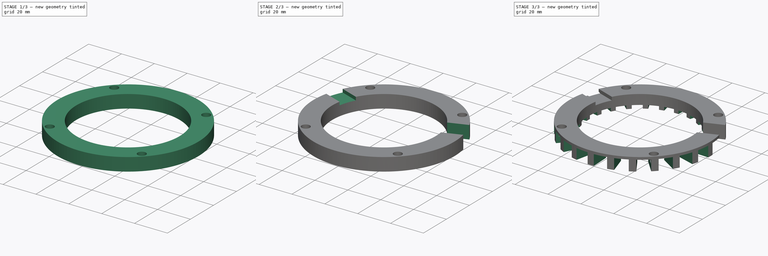
[diagram: build sequence overview — one tinted view per stage of 3, left to right]
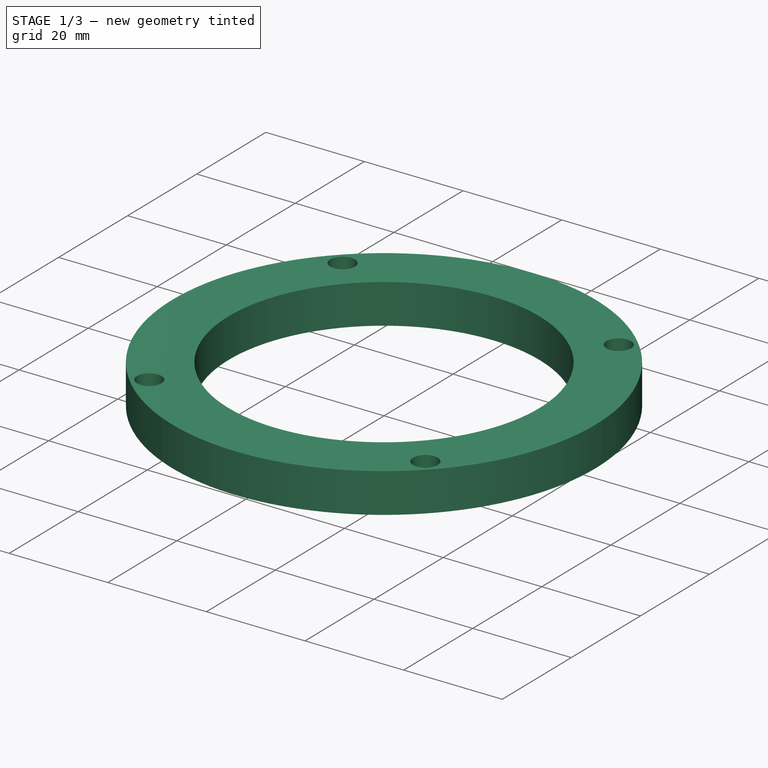
[diagram: stage 1 of 3 — iso view after this stage's code; geometry added in this stage tinted green]
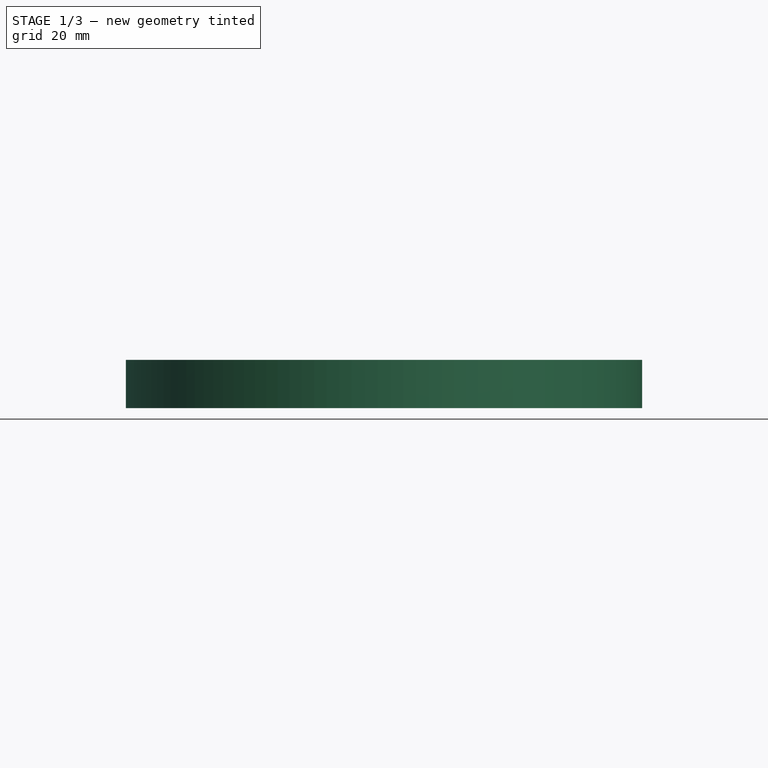
[diagram: stage 1 of 3 — front view after this stage's code; geometry added in this stage tinted green]
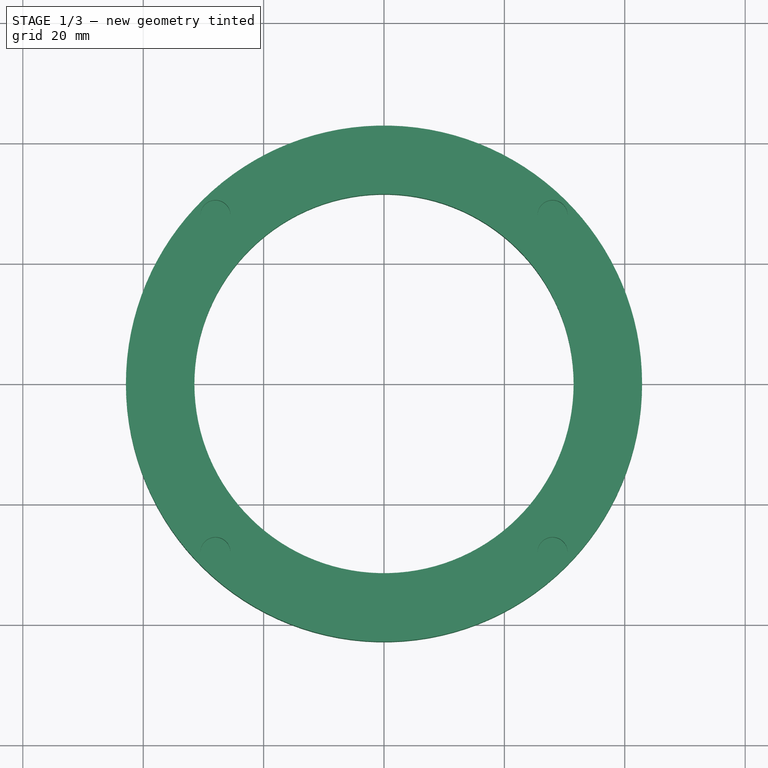
[diagram: stage 1 of 3 — top view after this stage's code; geometry added in this stage tinted green]
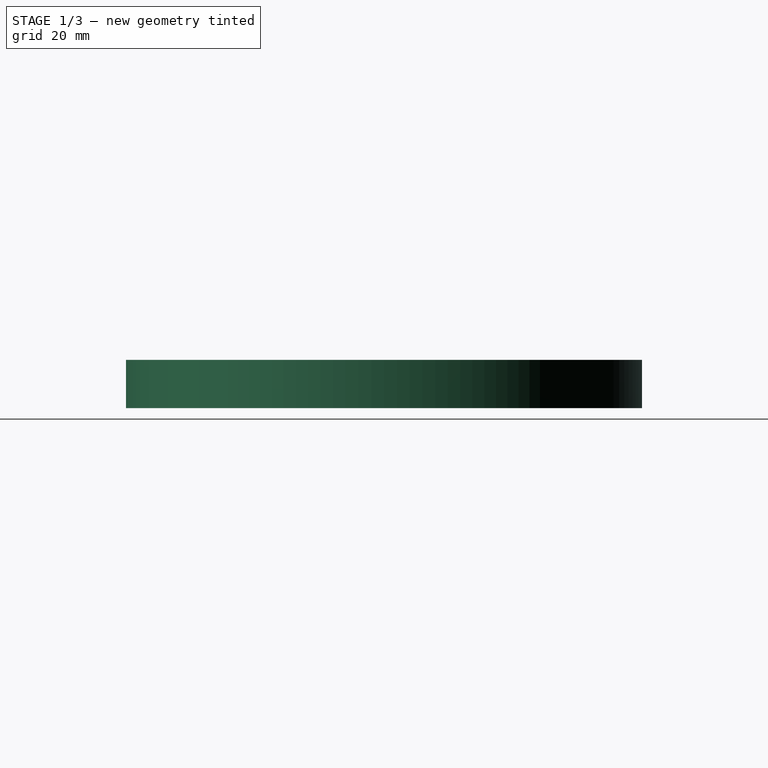
[diagram: stage 1 of 3 — right view after this stage's code; geometry added in this stage tinted green]
FCSTD DOCUMENT  (FreeCAD 1.0R38642 (Git))
Label: case
License: All rights reserved
LicenseURL: https://en.wikipedia.org/wiki/All_rights_reserved
objects: Sketcher::SketchObject×6, PartDesign::Pocket×3, PartDesign::Pad×2, PartDesign::Plane×1, PartDesign::Groove×1, PartDesign::PolarPattern×1, PartDesign::Body×1
note: 34 computed .brp shape members not serialized (recipe doc carries the construction recipe); baked Part::Feature solids carry a one-line shape summary decoded from their .brp

FEATURE [Sketcher::SketchObject] Sketch
  ArcFitTolerance = 1e-06
  AttachmentSupport = -> [XY_Plane]
  FullyConstrained = true
  MakeInternals = false
  MapMode = 5
  sketch-geometry (2):
    g0: Circle CenterX=0 CenterY=0 CenterZ=0 NormalX=0 NormalY=0 NormalZ=1 AngleXU=0 Radius=31.5
    g1: Circle CenterX=0 CenterY=0 CenterZ=0 NormalX=0 NormalY=0 NormalZ=1 AngleXU=0 Radius=42.875
  constraints (4):
    c: Coincident(g0,g-1)
    c: Coincident(g1,g0)
    c: Diameter(g0) = 63
    c: Diameter(g1) = 85.75
FEATURE [PartDesign::Pad] Pad
  Direction = (0,0,1)
  Length = 3.5
  Length2 = 10
  Profile = -> Sketch
  ReferenceAxis = -> Sketch [N_Axis]
  Refine = true
  Suppressed = false
  Type = 0
FEATURE [Sketcher::SketchObject] Sketch001
  ArcFitTolerance = 1e-06
  AttachmentSupport = -> [Pad]
  FullyConstrained = true
  MakeInternals = false
  MapMode = 5
  Placement = pos=(0,0,3.5) rot=(0,0,1;0rad)
  sketch-geometry (6):
    g0: Circle CenterX=-28 CenterY=28 CenterZ=0 NormalX=0 NormalY=0 NormalZ=1 AngleXU=0 Radius=2.5
    g1: Circle CenterX=0 CenterY=0 CenterZ=0 NormalX=0 NormalY=0 NormalZ=1 AngleXU=0 Radius=31.5
    g2: Circle CenterX=0 CenterY=0 CenterZ=0 NormalX=0 NormalY=0 NormalZ=1 AngleXU=0 Radius=42.875
    g3: Circle CenterX=28 CenterY=28 CenterZ=0 NormalX=0 NormalY=0 NormalZ=1 AngleXU=0 Radius=2.5
    g4: Circle CenterX=28 CenterY=-28 CenterZ=0 NormalX=0 NormalY=0 NormalZ=1 AngleXU=0 Radius=2.5
    g5: Circle CenterX=-28 CenterY=-28 CenterZ=0 NormalX=0 NormalY=0 NormalZ=1 AngleXU=0 Radius=2.5
  constraints (16):
    c: Coincident(g1,g-1)
    c: Coincident(g2,g1)
    c: Diameter(g1) = 63
    c: Diameter(g2) = 85.75
    c: DistanceX(g0,g1) = 28
    c: DistanceY(g1,g0) = 28
    c: Diameter(g0) = 5
    c: DistanceX(g1,g3) = 28
    c: DistanceY(g1,g3) = 28
    c: DistanceY(g4,g1) = 28
    c: DistanceY(g5,g1) = 28
    c: DistanceX(g5,g1) = 28
    c: DistanceX(g1,g4) = 28
    c: Equal(g3,g0)
    c: Equal(g3,g4)
    c: Equal(g5,g0)
FEATURE [PartDesign::Pad] Pad001
  BaseFeature = -> Pad
  Direction = (0,0,1)
  Length = 4.5
  Length2 = 10
  Profile = -> Sketch001
  ReferenceAxis = -> Sketch001 [N_Axis]
  Refine = true
  Suppressed = false
  Type = 0
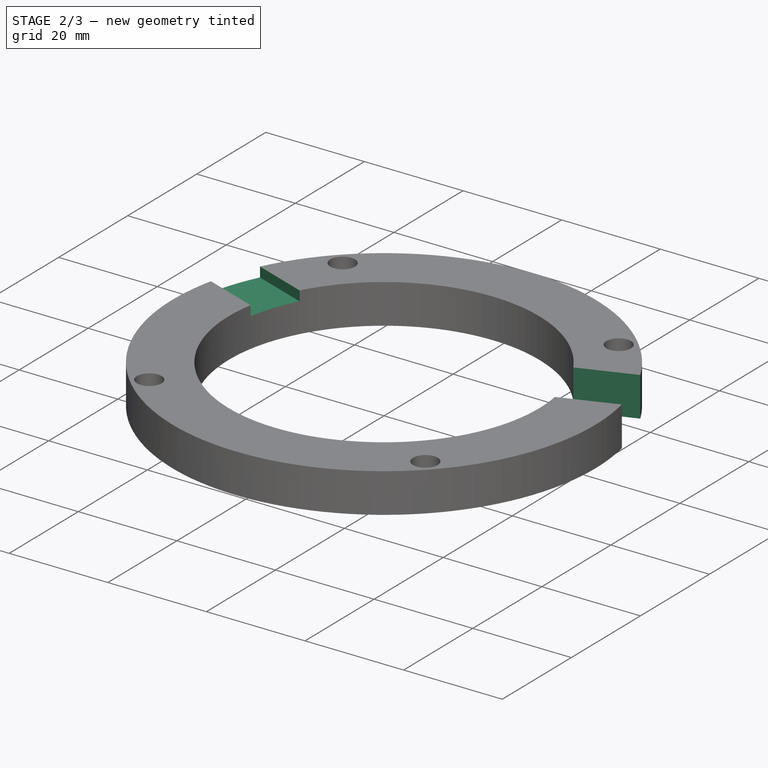
[diagram: stage 2 of 3 — iso view after this stage's code; geometry added in this stage tinted green]
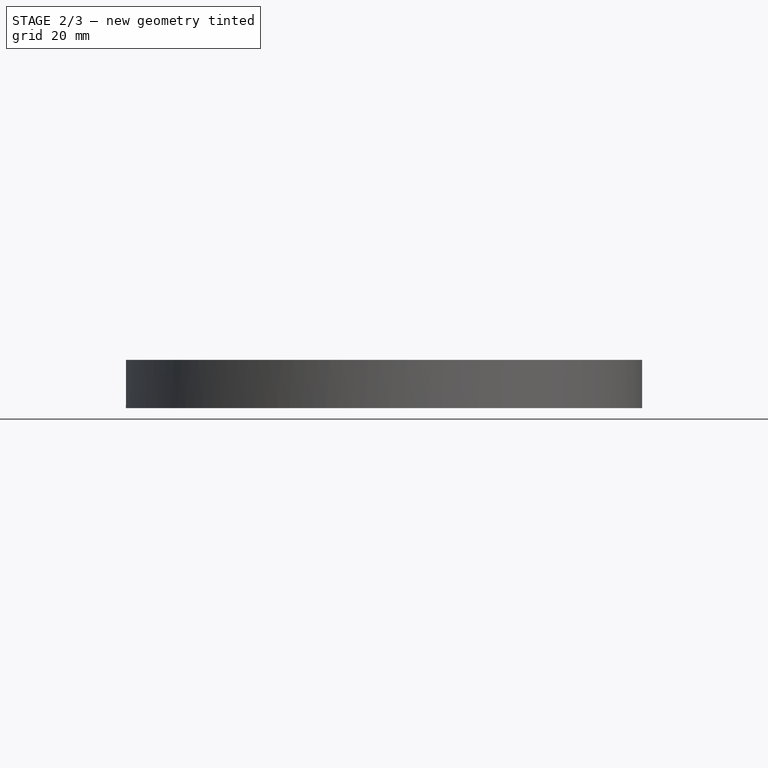
[diagram: stage 2 of 3 — front view after this stage's code; geometry added in this stage tinted green]
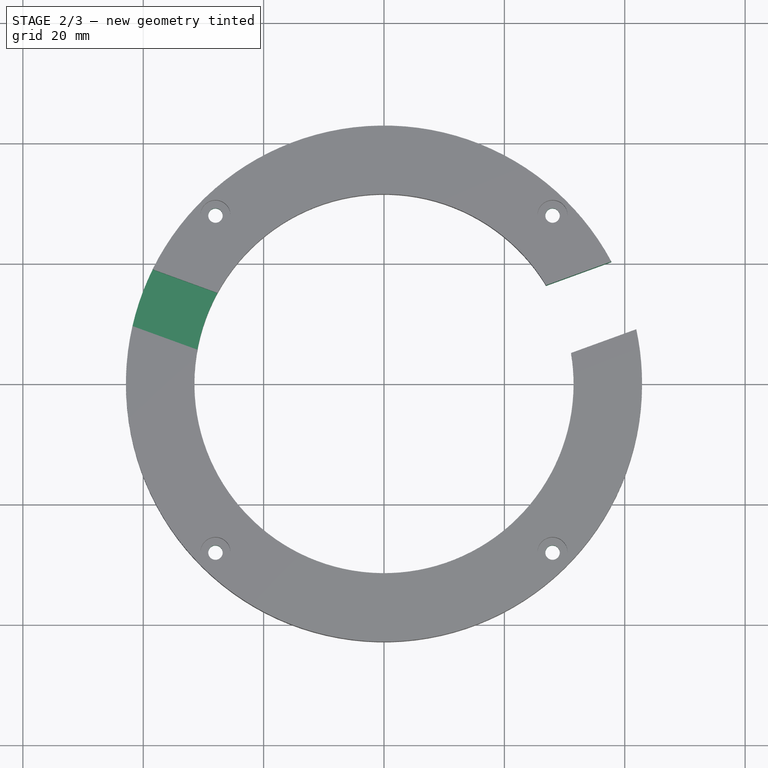
[diagram: stage 2 of 3 — top view after this stage's code; geometry added in this stage tinted green]
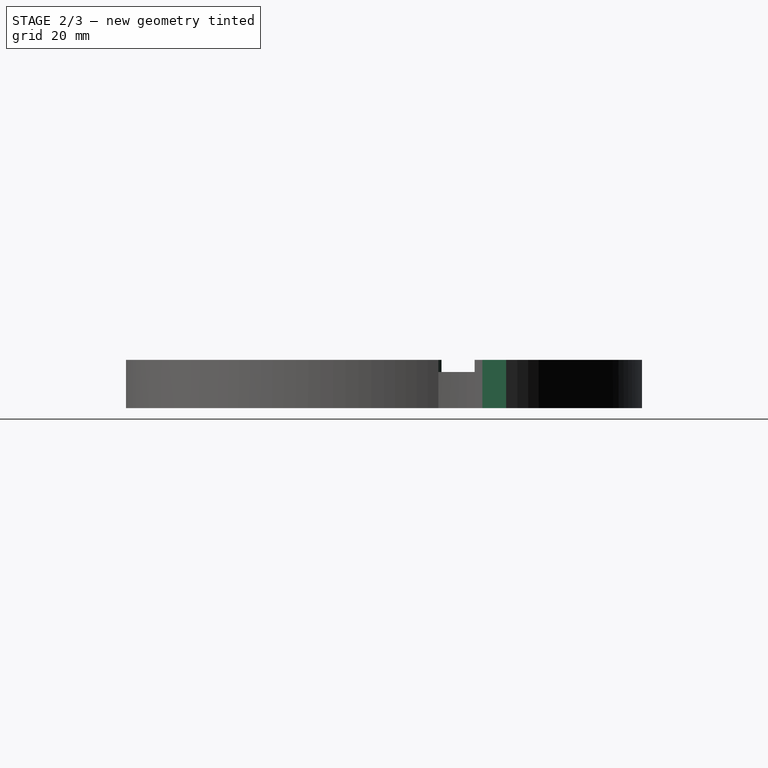
[diagram: stage 2 of 3 — right view after this stage's code; geometry added in this stage tinted green]
FEATURE [Sketcher::SketchObject] Sketch002
  ArcFitTolerance = 1e-06
  AttachmentSupport = -> [Pad001]
  ExternalGeometry = -> [Pad001]
  FullyConstrained = false
  MakeInternals = false
  MapMode = 5
  Placement = pos=(0,0,8) rot=(0,0,1;0rad)
  sketch-geometry (5):
    g0: Circle CenterX=-28 CenterY=28 CenterZ=0 NormalX=0 NormalY=0 NormalZ=1 AngleXU=0 Radius=1.2
    g1: Circle CenterX=28 CenterY=28 CenterZ=0 NormalX=0 NormalY=0 NormalZ=1 AngleXU=0 Radius=1.2
    g2: Circle CenterX=28 CenterY=-28 CenterZ=0 NormalX=0 NormalY=0 NormalZ=1 AngleXU=0 Radius=1.2
    g3: Circle [constr] CenterX=-28 CenterY=-28 CenterZ=0 NormalX=0 NormalY=0 NormalZ=1 AngleXU=0 Radius=2.5
    g4: Circle CenterX=-28 CenterY=-28 CenterZ=0 NormalX=0 NormalY=0 NormalZ=1 AngleXU=0 Radius=1.2
  constraints (8):
    c: Coincident(g0,g-3)
    c: Diameter(g0) = 2.4
    c: Coincident(g1,g-4)
    c: Coincident(g2,g-5)
    c: Coincident(g4,g3)
    c: Diameter(g1) = 2.4
    c: Diameter(g2) = 2.4
    c: Diameter(g4) = 2.4
FEATURE [PartDesign::Pocket] Pocket
  BaseFeature = -> Pad001
  Direction = (0,0,-1)
  Length = 5
  Length2 = 5
  Profile = -> Sketch002
  ReferenceAxis = -> Sketch002 [N_Axis]
  Refine = true
  Suppressed = false
  Type = 1
FEATURE [Sketcher::SketchObject] Sketch003
  ArcFitTolerance = 1e-06
  AttachmentSupport = -> [XY_Plane]
  FullyConstrained = true
  MakeInternals = false
  MapMode = 5
  sketch-geometry (5):
    g0: LineSegment StartX=-2.104 StartY=5.78068 StartZ=0 EndX=54.2776 EndY=26.3019 EndZ=0
    g1: LineSegment StartX=54.2776 StartY=26.3019 StartZ=0 EndX=58.3818 EndY=15.0256 EndZ=0
    g2: LineSegment StartX=58.3818 StartY=15.0256 StartZ=0 EndX=2.00024 EndY=-5.49563 EndZ=0
    g3: LineSegment StartX=2.00024 StartY=-5.49563 StartZ=0 EndX=-2.104 EndY=5.78068 EndZ=0
    g4: GeomPoint X=33.9 Y=12.5 Z=0
  constraints (14):
    c: Coincident(g1,g0)
    c: Coincident(g2,g1)
    c: Coincident(g3,g2)
    c: Coincident(g3,g0)
    c: Perpendicular(g1,g0)
    c: Perpendicular(g2,g1)
    c: Perpendicular(g3,g2)
    c: Distance(g4,g0) = 6
    c: Distance(g4,g2) = 6
    c: Angle(g-1,g0) = 0.349066
    c: DistanceX(g-1,g4) = 33.9
    c: DistanceY(g-1,g4) = 12.5
    c: PointOnObject(g-1,g3)
    c: Distance(g0,g0) = 60
FEATURE [PartDesign::Pocket] Pocket001
  BaseFeature = -> Pocket
  Direction = (0,0,-1)
  Length = 5
  Length2 = 5
  Midplane = true
  Profile = -> Sketch003
  ReferenceAxis = -> Sketch003 [N_Axis]
  Refine = true
  Suppressed = false
  Type = 1
FEATURE [Sketcher::SketchObject] Sketch004
  ArcFitTolerance = 1e-06
  AttachmentSupport = -> [Pocket001]
  FullyConstrained = true
  MakeInternals = false
  MapMode = 5
  Placement = pos=(0,0,8) rot=(0,0,1;0rad)
  sketch-geometry (5):
    g0: LineSegment StartX=-54.7772 StartY=24.9291 StartZ=0 EndX=1.60435 EndY=4.40792 EndZ=0
    g1: LineSegment StartX=1.60435 StartY=4.40792 StartZ=0 EndX=-1.81585 EndY=-4.98901 EndZ=0
    g2: LineSegment StartX=-1.81585 StartY=-4.98901 StartZ=0 EndX=-58.1974 EndY=15.5322 EndZ=0
    g3: LineSegment StartX=-58.1974 StartY=15.5322 StartZ=0 EndX=-54.7772 EndY=24.9291 EndZ=0
    g4: GeomPoint X=-32.5 Y=11.5 Z=0
  constraints (14):
    c: Coincident(g1,g0)
    c: Coincident(g2,g1)
    c: Coincident(g3,g0)
    c: Perpendicular(g1,g2)
    c: Perpendicular(g1,g0)
    c: Perpendicular(g3,g0)
    c: Coincident(g3,g2)
    c: DistanceX(g4,g-1) = 32.5
    c: DistanceY(g-1,g4) = 11.5
    c: Distance(g4,g0) = 5
    c: Distance(g4,g2) = 5
    c: Angle(g0,g-1) = 0.349066
    c: PointOnObject(g-1,g1)
    c: Distance(g0) = 60
FEATURE [PartDesign::Pocket] Pocket002
  BaseFeature = -> Pocket001
  Direction = (0,0,-1)
  Length = 2
  Length2 = 5
  Profile = -> Sketch004
  ReferenceAxis = -> Sketch004 [N_Axis]
  Refine = true
  Suppressed = false
  Type = 0
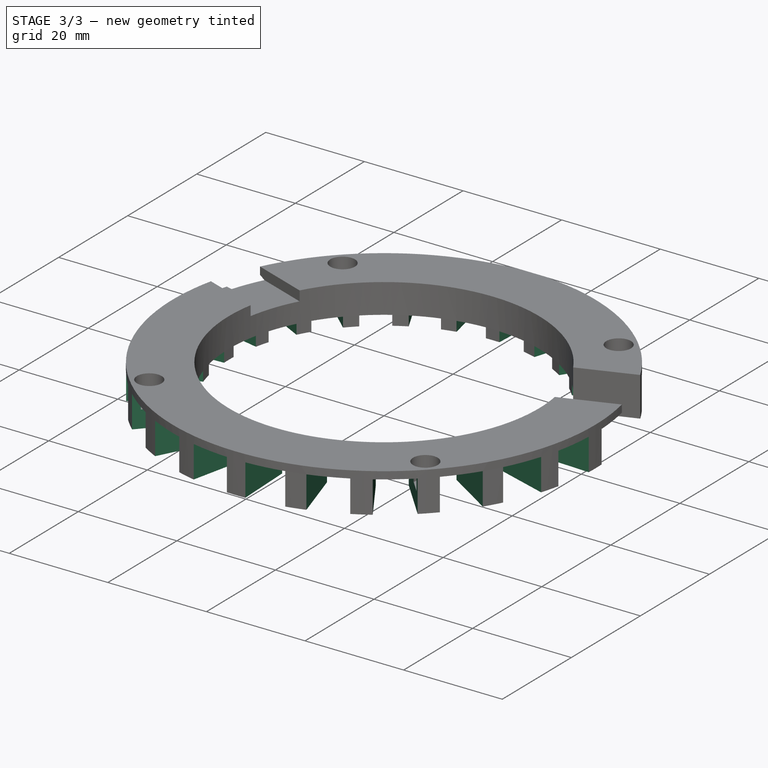
[diagram: stage 3 of 3 — iso view after this stage's code; geometry added in this stage tinted green]
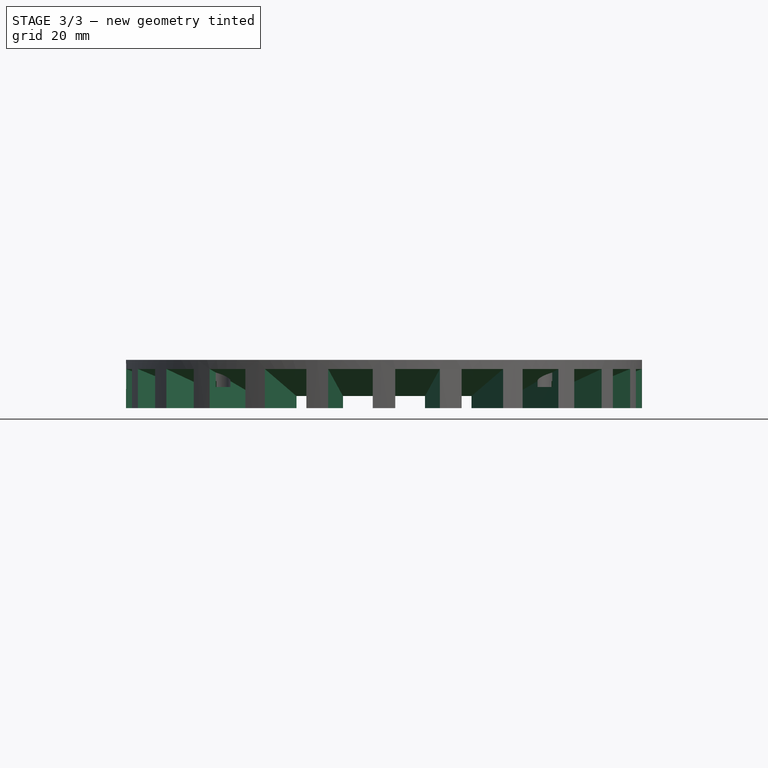
[diagram: stage 3 of 3 — front view after this stage's code; geometry added in this stage tinted green]
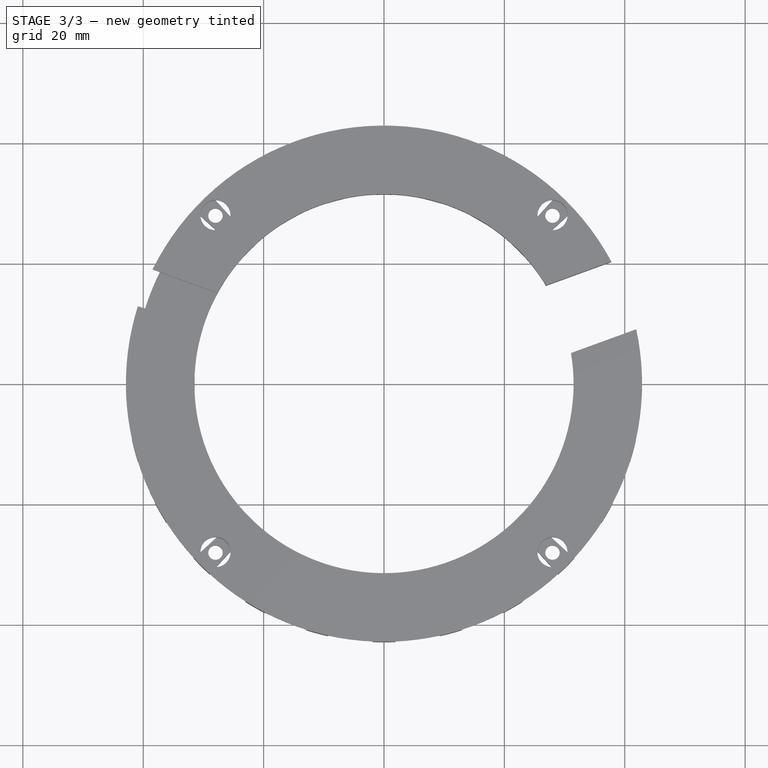
[diagram: stage 3 of 3 — top view after this stage's code; geometry added in this stage tinted green]
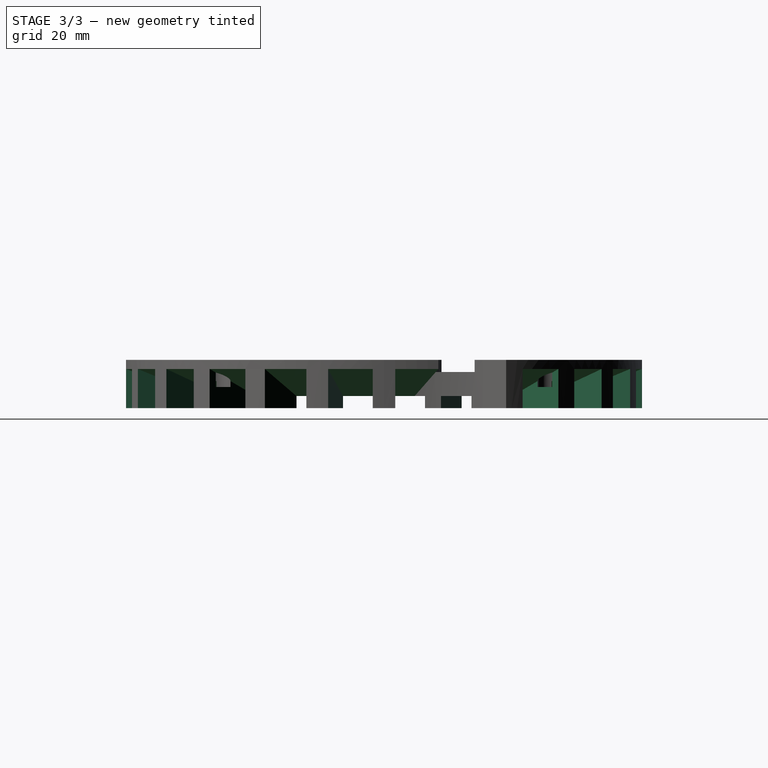
[diagram: stage 3 of 3 — right view after this stage's code; geometry added in this stage tinted green]
FEATURE [PartDesign::Plane] DatumPlane
  AttachmentOffset = pos=(0,0,0) rot=(0,1,0;0.1309rad)
  AttachmentSupport = -> [YZ_Plane]
  Length = 110.071
  MapMode = 5
  Placement = pos=(0,0,0) rot=(0.527011,0.600941,0.600941;2.17155rad)
  ResizeMode = 0
  Width = 63.8708
FEATURE [Sketcher::SketchObject] Sketch005
  ArcFitTolerance = 1e-06
  AttachmentSupport = -> [DatumPlane]
  ExternalGeometry = -> [Pocket002]
  FullyConstrained = true
  MakeInternals = false
  MapMode = 5
  Placement = pos=(0,0,0) rot=(0.527011,0.600941,0.600941;2.17155rad)
  sketch-geometry (4):
    g0: LineSegment StartX=-42.875 StartY=6.5e-15 StartZ=0 EndX=-42.875 EndY=6.5 EndZ=0
    g1: LineSegment StartX=-42.875 StartY=6.5 StartZ=0 EndX=-31.5 EndY=2 EndZ=0
    g2: LineSegment StartX=-31.5 StartY=2 StartZ=0 EndX=-31.5 EndY=4.9e-15 EndZ=0
    g3: LineSegment StartX=-31.5 StartY=6.5e-15 StartZ=0 EndX=-42.875 EndY=6.5e-15 EndZ=0
  constraints (11):
    c: Coincident(g0,g-8)
    c: Vertical(g0)
    c: Coincident(g1,g0)
    c: Coincident(g2,g1)
    c: Coincident(g2,g-7)
    c: Vertical(g2)
    c: PointOnObject(g3,g2)
    c: Coincident(g3,g0)
    c: Horizontal(g3)
    c: DistanceY(g0,g-5) = 1.5
    c: Distance(g2) = 2
FEATURE [PartDesign::Groove] Groove
  Angle = 10
  Angle2 = 60
  Axis = (-1e-16,-2e-16,1)
  Base = (0,0,0)
  BaseFeature = -> Pocket002
  Midplane = true
  Profile = -> Sketch005
  ReferenceAxis = -> Sketch005 [V_Axis]
  Refine = true
  Reversed = true
  Suppressed = false
  Type = 0
FEATURE [PartDesign::PolarPattern] PolarPattern
  Angle = 360
  Axis = -> Z_Axis
  BaseFeature = -> Groove
  Mode = 0
  Occurrences = 24
  Offset = 120
  Originals = -> [Groove]
  Refine = true
  Suppressed = false
  TransformMode = 0
FEATURE [PartDesign::Body] Body
  AllowCompound = false
  Group = -> [Sketch,Pad,Sketch001,Pad001,Sketch002,Pocket,Sketch003,Pocket001,Sketch004,Pocket002,DatumPlane,Sketch005,Groove,PolarPattern]
  Origin = -> Origin
  Tip = -> PolarPattern
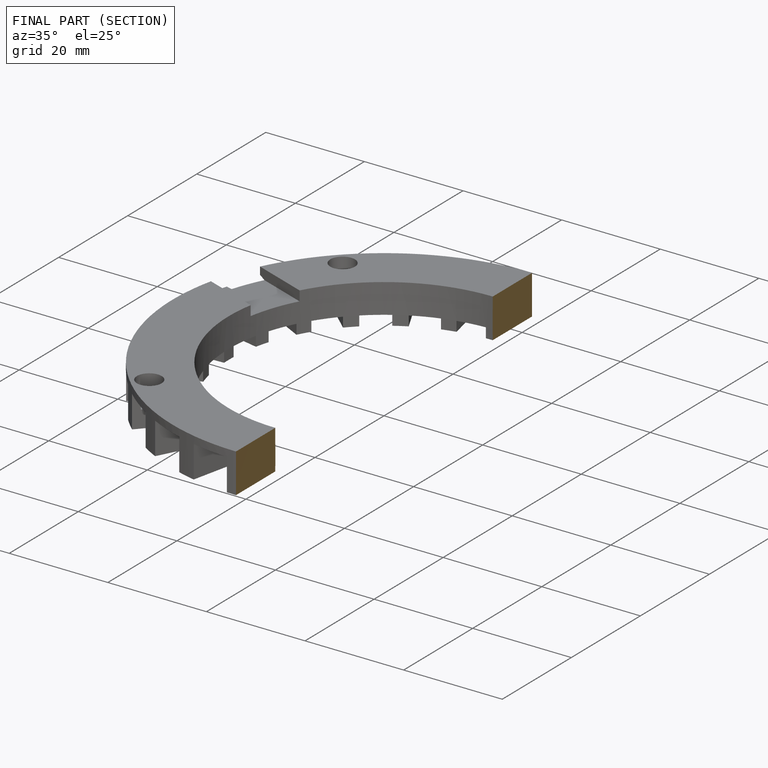
[diagram: finished part — half-section view (interior)]
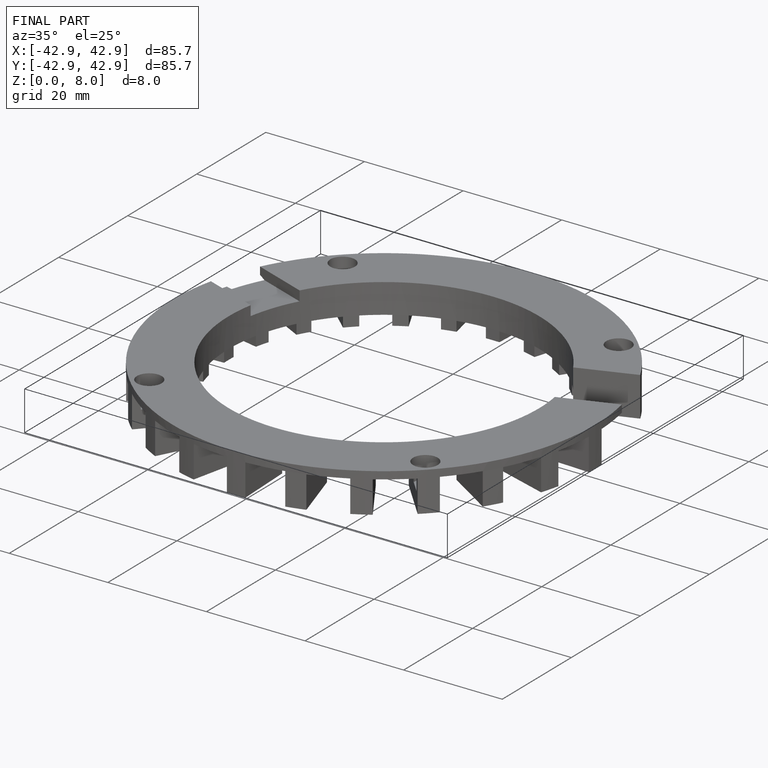
[diagram: finished part — iso view with bounding-box wireframe]
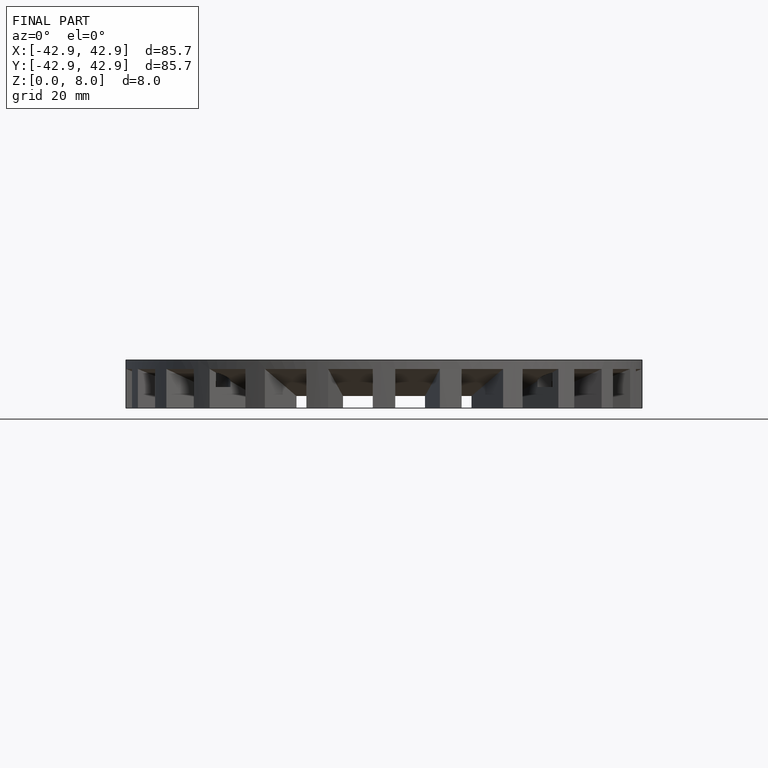
[diagram: finished part — front view with bounding-box wireframe]
